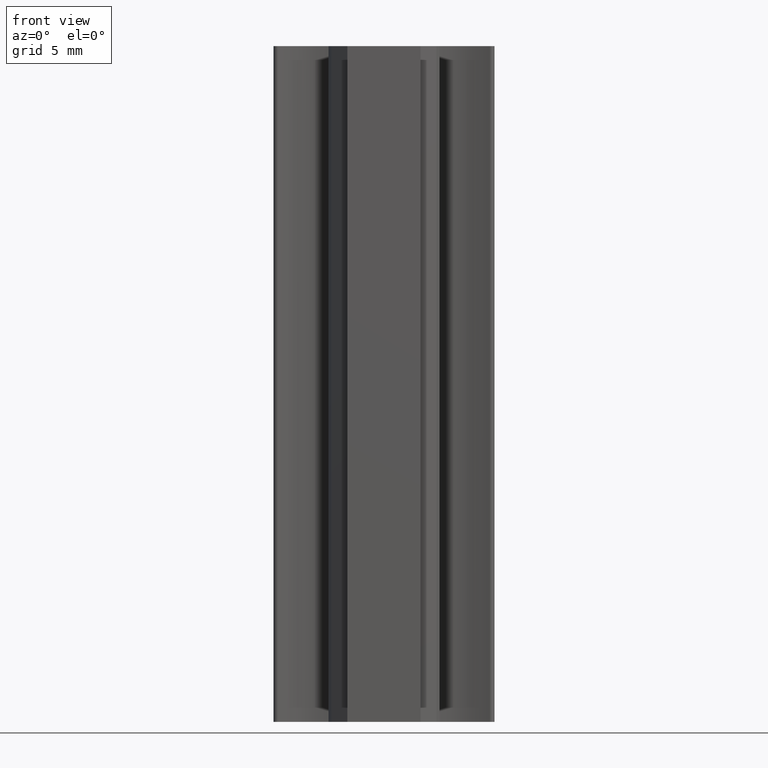
[diagram: clean part render]
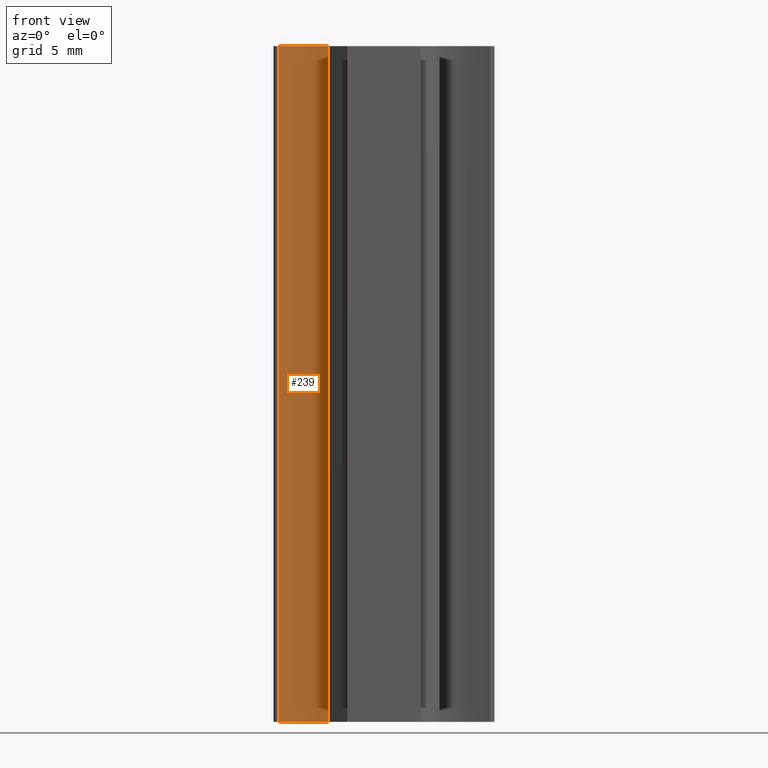
[diagram: same view with one face highlighted and labeled with its STEP entity id]
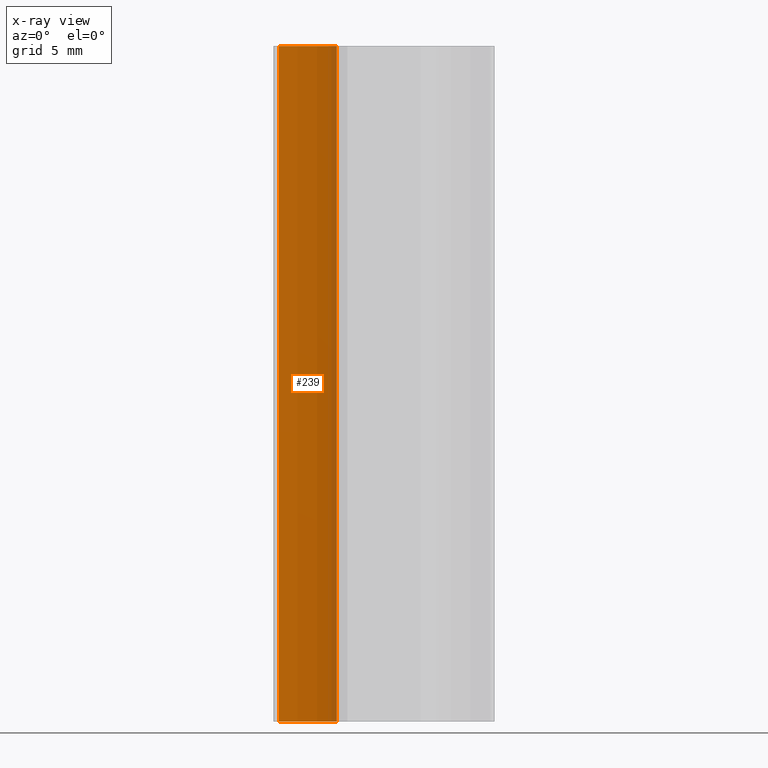
[diagram: x-ray of the same camera — body ghosted, the highlighted face saturated]
A machine part, front view. The second image highlights one B-rep face of the part: STEP entity #239.
The next image is the same camera in x-ray: the body ghosted, the highlighted face saturated — about 9% of this face is hidden behind the body in this view.
In plain terms, the highlighted cylindrical surface (partial cylindrical patch) has radius 6.6468 mm, axis along (0, 0, -1).
Its self-contained STEP definition (entity closure, byte-faithful):
#179=CARTESIAN_POINT('',(-7.789874920917100,9.304068306467343,0.0));
#180=VERTEX_POINT('',#179);
#188=CARTESIAN_POINT('',(-7.789874920917100,9.304068306467343,50.0));
#189=VERTEX_POINT('',#188);
#190=CARTESIAN_POINT('',(-7.789874920917100,9.304068306467343,0.0));
#191=DIRECTION('',(0.0,0.0,1.0));
#192=VECTOR('',#191,50.0);
#193=LINE('',#190,#192);
#194=EDGE_CURVE('',#180,#189,#193,.T.);
#207=CARTESIAN_POINT('',(-5.064586375299768,3.241657303579814,0.0));
#208=DIRECTION('',(0.0,0.0,-1.0));
#209=DIRECTION('',(-0.410014780826523,0.912078877895864,0.0));
#210=AXIS2_PLACEMENT_3D('',#207,#208,#209);
#211=CYLINDRICAL_SURFACE('',#210,6.646805610577232);
#212=CARTESIAN_POINT('',(-3.499992999986716,9.701693866534697,0.0));
#213=VERTEX_POINT('',#212);
#214=CARTESIAN_POINT('',(-5.064586375299768,3.241657303579814,0.0));
#215=DIRECTION('',(0.0,0.0,-1.0));
#216=DIRECTION('',(1.0,0.0,0.0));
#217=AXIS2_PLACEMENT_3D('',#214,#215,#216);
#218=CIRCLE('',#217,6.646805610577232);
#219=EDGE_CURVE('',#180,#213,#218,.T.);
#220=ORIENTED_EDGE('',*,*,#219,.T.);
#221=CARTESIAN_POINT('',(-3.499992999986716,9.701693866534697,50.0));
#222=VERTEX_POINT('',#221);
#223=CARTESIAN_POINT('',(-3.499992999986716,9.701693866534697,0.0));
#224=DIRECTION('',(0.0,0.0,1.0));
#225=VECTOR('',#224,50.0);
#226=LINE('',#223,#225);
#227=EDGE_CURVE('',#213,#222,#226,.T.);
#228=ORIENTED_EDGE('',*,*,#227,.T.);
#229=CARTESIAN_POINT('',(-5.064586375299768,3.241657303579814,50.0));
#230=DIRECTION('',(0.0,0.0,-1.0));
#231=DIRECTION('',(1.0,0.0,0.0));
#232=AXIS2_PLACEMENT_3D('',#229,#230,#231);
#233=CIRCLE('',#232,6.646805610577232);
#234=EDGE_CURVE('',#189,#222,#233,.T.);
#235=ORIENTED_EDGE('',*,*,#234,.F.);
#236=ORIENTED_EDGE('',*,*,#194,.F.);
#237=EDGE_LOOP('',(#220,#228,#235,#236));
#238=FACE_OUTER_BOUND('',#237,.T.);
#239=ADVANCED_FACE('',(#238),#211,.F.);